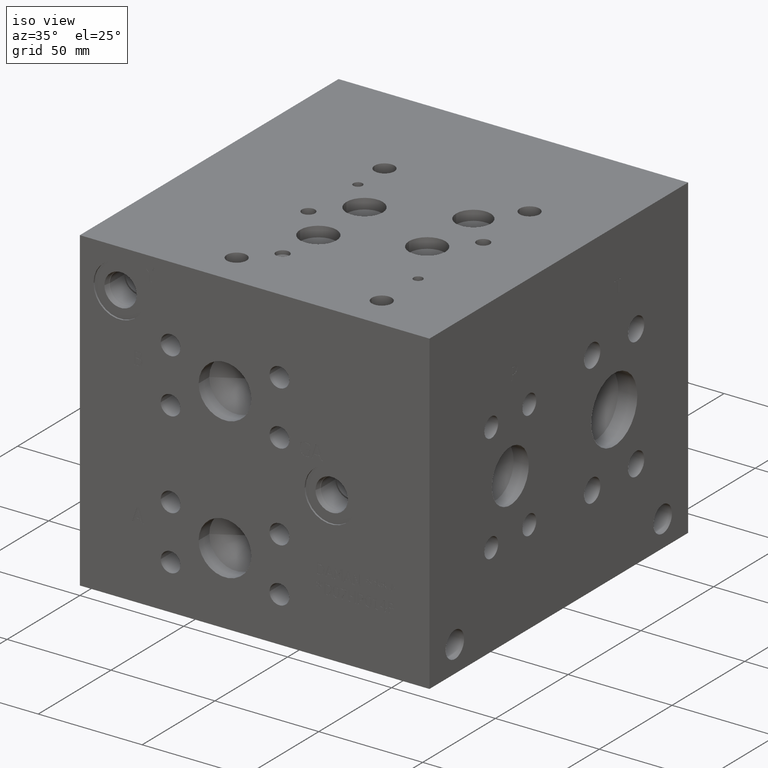
[diagram: clean part render]
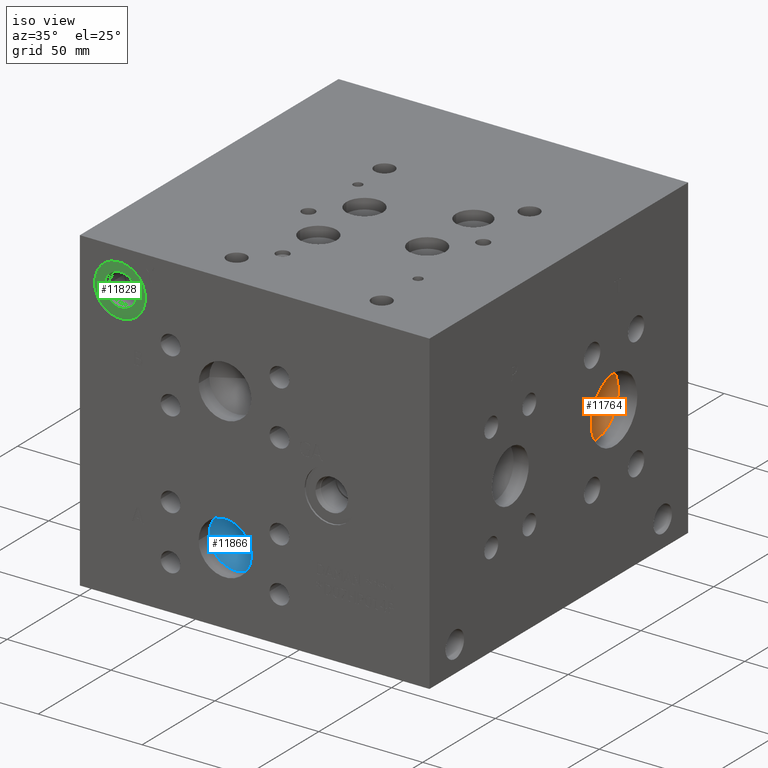
[diagram: same view with three faces highlighted in distinct colors, each labeled with its STEP entity id]
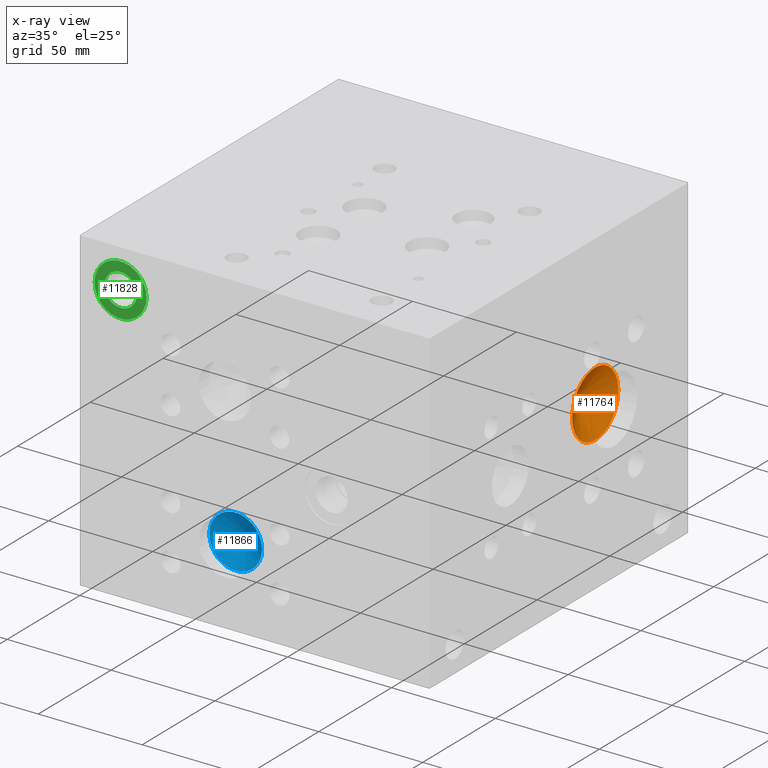
[diagram: x-ray of the same camera — body ghosted, the three highlighted faces saturated]
A machine part, iso view with three faces highlighted in distinct colors.
The next image is the same camera in x-ray (body ghosted, the three faces saturated) — at least one of them is partly hidden behind the body in this view.
Their STEP definitions:

[orange] entity #11764 — the highlighted conical surface has half-angle 60 deg.
#116=CONICAL_SURFACE('',#12422,7.9375,1.0471975511966);
#284=CIRCLE('',#12423,15.875);
#285=CIRCLE('',#12424,15.875);
#1456=FACE_OUTER_BOUND('',#2157,.T.);
#2157=EDGE_LOOP('',(#10077,#10078,#10079,#10080));
#3345=LINE('',#19481,#4460);
#4460=VECTOR('',#14771,7.9375);
#5667=VERTEX_POINT('',#19477);
#5668=VERTEX_POINT('',#19478);
#5669=VERTEX_POINT('',#19480);
#7218=EDGE_CURVE('',#5667,#5668,#284,.T.);
#7219=EDGE_CURVE('',#5668,#5669,#3345,.T.);
#7220=EDGE_CURVE('',#5668,#5667,#285,.T.);
#10077=ORIENTED_EDGE('',*,*,#7218,.T.);
#10078=ORIENTED_EDGE('',*,*,#7219,.T.);
#10079=ORIENTED_EDGE('',*,*,#7219,.F.);
#10080=ORIENTED_EDGE('',*,*,#7220,.T.);
#11764=ADVANCED_FACE('',(#1456),#116,.F.);
#12422=AXIS2_PLACEMENT_3D('',#19476,#14767,#14768);
#12423=AXIS2_PLACEMENT_3D('',#19479,#14769,#14770);
#12424=AXIS2_PLACEMENT_3D('',#19482,#14772,#14773);
#14767=DIRECTION('center_axis',(1.,0.,0.));
#14768=DIRECTION('ref_axis',(0.,1.,0.));
#14769=DIRECTION('center_axis',(1.,0.,0.));
#14770=DIRECTION('ref_axis',(0.,1.,0.));
#14771=DIRECTION('',(-0.5,0.866025403784439,1.06057523872491E-16));
#14772=DIRECTION('center_axis',(1.,0.,0.));
#14773=DIRECTION('ref_axis',(0.,1.,0.));
#19476=CARTESIAN_POINT('Origin',(154.526842238307,127.,73.025));
#19477=CARTESIAN_POINT('',(159.10956,142.875,73.025));
#19478=CARTESIAN_POINT('',(159.10956,111.125,73.025));
#19479=CARTESIAN_POINT('Origin',(159.10956,127.,73.025));
#19480=CARTESIAN_POINT('',(149.944124476615,127.,73.025));
#19481=CARTESIAN_POINT('',(154.526842238307,119.0625,73.025));
#19482=CARTESIAN_POINT('Origin',(159.10956,127.,73.025));

[blue] entity #11866 — the highlighted conical surface has half-angle 60 deg.
#146=CONICAL_SURFACE('',#12656,6.35,1.0471975511966);
#416=CIRCLE('',#12657,12.7);
#417=CIRCLE('',#12658,12.7);
#1558=FACE_OUTER_BOUND('',#2281,.T.);
#2281=EDGE_LOOP('',(#10549,#10550,#10551,#10552));
#3425=LINE('',#19951,#4540);
#4540=VECTOR('',#15319,6.35);
#5823=VERTEX_POINT('',#19947);
#5824=VERTEX_POINT('',#19948);
#5825=VERTEX_POINT('',#19950);
#7430=EDGE_CURVE('',#5823,#5824,#416,.T.);
#7431=EDGE_CURVE('',#5824,#5825,#3425,.T.);
#7432=EDGE_CURVE('',#5824,#5823,#417,.T.);
#10549=ORIENTED_EDGE('',*,*,#7430,.T.);
#10550=ORIENTED_EDGE('',*,*,#7431,.T.);
#10551=ORIENTED_EDGE('',*,*,#7431,.F.);
#10552=ORIENTED_EDGE('',*,*,#7432,.T.);
#11866=ADVANCED_FACE('',(#1558),#146,.F.);
#12656=AXIS2_PLACEMENT_3D('',#19946,#15315,#15316);
#12657=AXIS2_PLACEMENT_3D('',#19949,#15317,#15318);
#12658=AXIS2_PLACEMENT_3D('',#19952,#15320,#15321);
#15315=DIRECTION('center_axis',(0.,-1.,0.));
#15316=DIRECTION('ref_axis',(1.,0.,0.));
#15317=DIRECTION('center_axis',(0.,-1.,0.));
#15318=DIRECTION('ref_axis',(1.,0.,0.));
#15319=DIRECTION('',(0.866025403784439,0.5,1.06057523872491E-16));
#15320=DIRECTION('center_axis',(0.,-1.,0.));
#15321=DIRECTION('ref_axis',(1.,0.,0.));
#19946=CARTESIAN_POINT('Origin',(69.85,10.9985242093541,34.925));
#19947=CARTESIAN_POINT('',(82.55,7.33235,34.925));
#19948=CARTESIAN_POINT('',(57.15,7.33235,34.925));
#19949=CARTESIAN_POINT('Origin',(69.85,7.33235,34.925));
#19950=CARTESIAN_POINT('',(69.85,14.6646984187083,34.925));
#19951=CARTESIAN_POINT('',(63.5,10.9985242093541,34.925));
#19952=CARTESIAN_POINT('Origin',(69.85,7.33235,34.925));

[green] entity #11828 — the highlighted planar face has unit normal (0, 1, 0).
#366=CIRCLE('',#12568,12.5095);
#367=CIRCLE('',#12569,12.5095);
#368=CIRCLE('',#12571,7.7978);
#369=CIRCLE('',#12572,7.7978);
#589=FACE_BOUND('',#2235,.T.);
#970=PLANE('',#12570);
#1520=FACE_OUTER_BOUND('',#2234,.T.);
#2234=EDGE_LOOP('',(#10374,#10375));
#2235=EDGE_LOOP('',(#10376,#10377));
#5764=VERTEX_POINT('',#19769);
#5765=VERTEX_POINT('',#19771);
#5766=VERTEX_POINT('',#19775);
#5767=VERTEX_POINT('',#19776);
#7351=EDGE_CURVE('',#5764,#5765,#366,.T.);
#7352=EDGE_CURVE('',#5765,#5764,#367,.T.);
#7353=EDGE_CURVE('',#5766,#5767,#368,.T.);
#7354=EDGE_CURVE('',#5767,#5766,#369,.T.);
#10374=ORIENTED_EDGE('',*,*,#7352,.F.);
#10375=ORIENTED_EDGE('',*,*,#7351,.F.);
#10376=ORIENTED_EDGE('',*,*,#7353,.T.);
#10377=ORIENTED_EDGE('',*,*,#7354,.T.);
#11828=ADVANCED_FACE('',(#1520,#589),#970,.F.);
#12568=AXIS2_PLACEMENT_3D('',#19772,#15110,#15111);
#12569=AXIS2_PLACEMENT_3D('',#19773,#15112,#15113);
#12570=AXIS2_PLACEMENT_3D('',#19774,#15114,#15115);
#12571=AXIS2_PLACEMENT_3D('',#19777,#15116,#15117);
#12572=AXIS2_PLACEMENT_3D('',#19778,#15118,#15119);
#15110=DIRECTION('center_axis',(0.,1.,0.));
#15111=DIRECTION('ref_axis',(1.,0.,0.));
#15112=DIRECTION('center_axis',(0.,1.,0.));
#15113=DIRECTION('ref_axis',(1.,0.,0.));
#15114=DIRECTION('center_axis',(0.,1.,0.));
#15115=DIRECTION('ref_axis',(0.,0.,1.));
#15116=DIRECTION('center_axis',(0.,1.,0.));
#15117=DIRECTION('ref_axis',(1.,0.,0.));
#15118=DIRECTION('center_axis',(0.,1.,0.));
#15119=DIRECTION('ref_axis',(1.,0.,0.));
#19769=CARTESIAN_POINT('',(6.5405,0.7874,133.35));
#19771=CARTESIAN_POINT('',(31.5595,0.7874,133.35));
#19772=CARTESIAN_POINT('Origin',(19.05,0.7874,133.35));
#19773=CARTESIAN_POINT('Origin',(19.05,0.7874,133.35));
#19774=CARTESIAN_POINT('Origin',(26.8478,0.7874,133.35));
#19775=CARTESIAN_POINT('',(26.8478,0.7874,133.35));
#19776=CARTESIAN_POINT('',(11.2522,0.787399999999998,133.35));
#19777=CARTESIAN_POINT('Origin',(19.05,0.7874,133.35));
#19778=CARTESIAN_POINT('Origin',(19.05,0.7874,133.35));